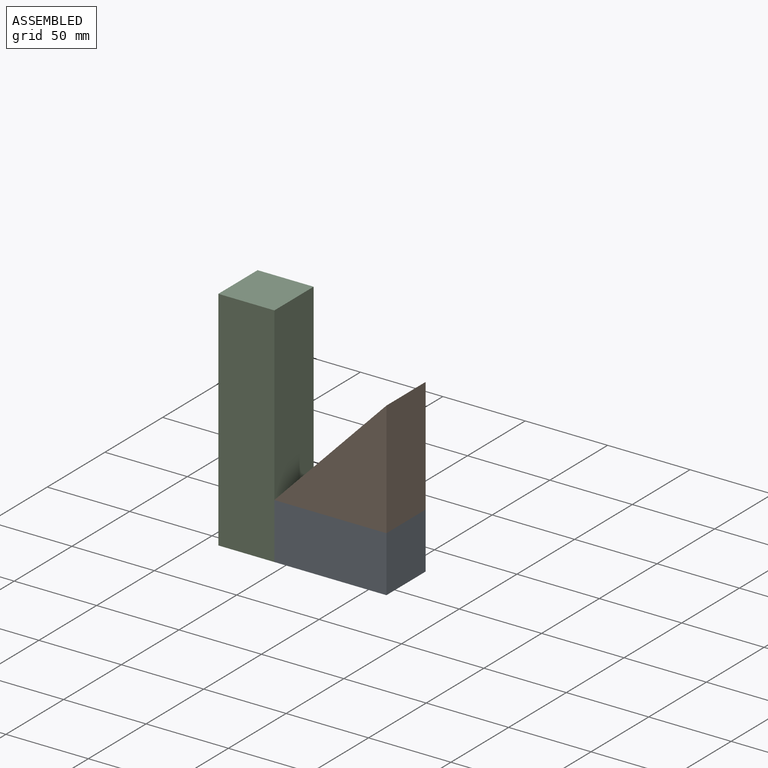
[diagram: assembled view]
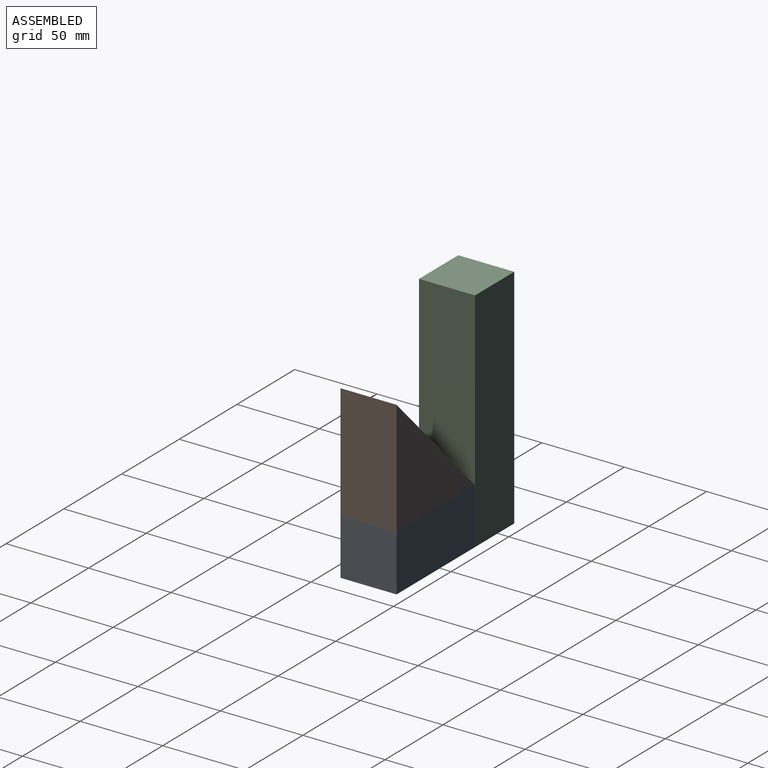
[diagram: assembled view, second angle]
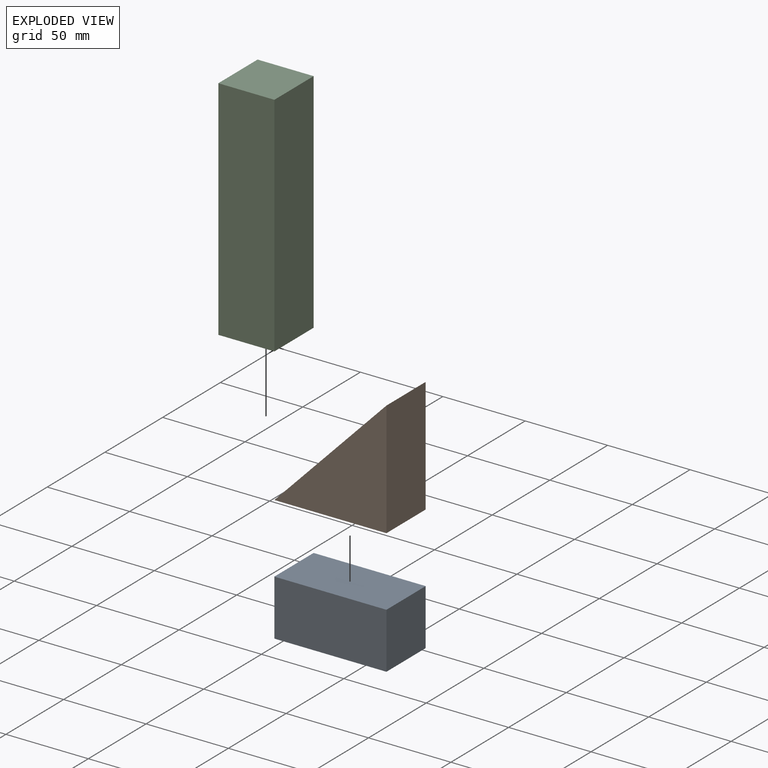
[diagram: exploded view]
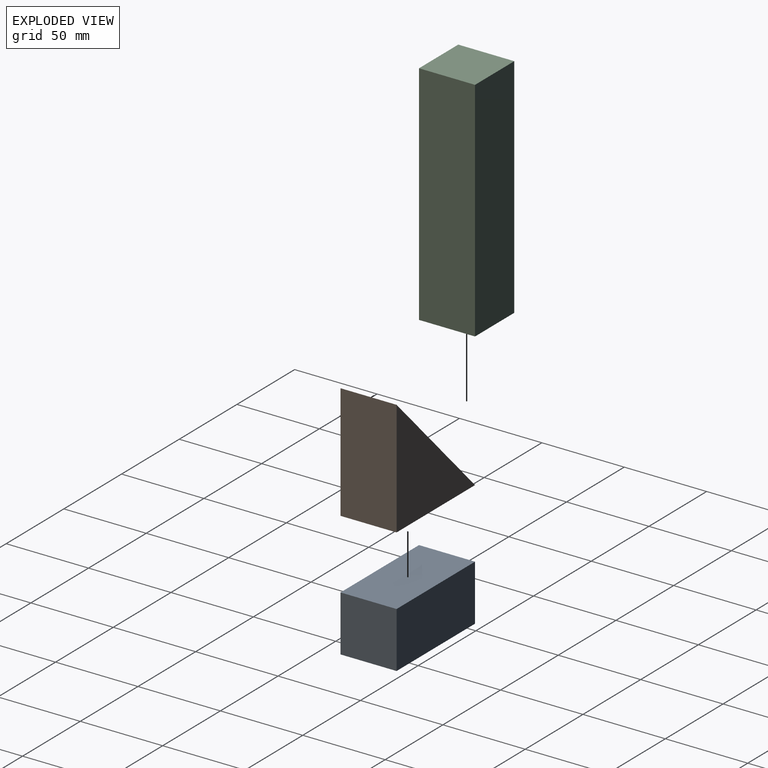
[diagram: exploded view, second angle]
ASSEMBLY  parts=3 mates=6
PART A: 6 faces, bbox 68x34x34 mm
  f0: plane 68x34mm, normal (0,0,1), area 2312mm2, adj f1,f3,f4,f5
  f1: plane 34x34mm, normal (-1,0,0), area 1156mm2, adj f0,f2,f4,f5
  f2: plane 68x34mm, normal (0,0,-1), area 2312mm2, adj f1,f3,f4,f5
  f3: plane 34x34mm, normal (1,0,0), area 1156mm2, adj f0,f2,f4,f5
  f4: plane 68x34mm, normal (0,-1,0), area 2312mm2, adj f0,f1,f2,f3
  f5: plane 68x34mm, normal (0,1,0), area 2312mm2, adj f0,f1,f2,f3
PART B: 5 faces, bbox 68x34x70 mm
  f0: plane 70x68mm, normal (-0.72,0,0.7), area 3318.1mm2, adj f1,f2,f3,f4
  f1: plane 68x34mm, normal (0,0,-1), area 2312mm2, adj f0,f2,f3,f4
  f2: plane 70x34mm, normal (1,0,0), area 2380mm2, adj f0,f1,f3,f4
  f3: plane 70x68mm, normal (0,-1,0), area 2380mm2, adj f0,f1,f2
  f4: plane 70x68mm, normal (0,1,0), area 2380mm2, adj f0,f1,f2
PART C: 6 faces, bbox 34x34x138 mm
  f0: plane 34x34mm, normal (0,0,1), area 1156mm2, adj f1,f3,f4,f5
  f1: plane 138x34mm, normal (-1,0,0), area 4692mm2, adj f0,f2,f4,f5
  f2: plane 34x34mm, normal (0,0,-1), area 1156mm2, adj f1,f3,f4,f5
  f3: plane 138x34mm, normal (1,0,0), area 4692mm2, adj f0,f2,f4,f5
  f4: plane 138x34mm, normal (0,-1,0), area 4692mm2, adj f0,f1,f2,f3
  f5: plane 138x34mm, normal (0,1,0), area 4692mm2, adj f0,f1,f2,f3
PLACE A t=(7.91,-51.88,3.98)mm
PLACE B t=(38.42,-51.88,25)mm
PLACE C t=(0.97,-51.88,5.99)mm
MATE planar C.f2 <-> A.f2  axis (0,0,-1) through (-19.01,-68.88,-42.57)mm
MATE planar B.f2 <-> A.f3  axis (1,0,0) through (65.99,-68.88,26.43)mm
MATE planar A.f1 <-> C.f3  axis (-1,0,0) through (-2.01,-68.88,-25.57)mm
MATE planar C.f4 <-> A.f4  axis (0,-1,0) through (-19.01,-85.88,26.43)mm
MATE planar B.f3 <-> A.f4  axis (0,-1,0) through (43.32,-85.88,14.76)mm
MATE planar B.f1 <-> A.f0  axis (0,0,-1) through (31.99,-68.88,-8.57)mm
